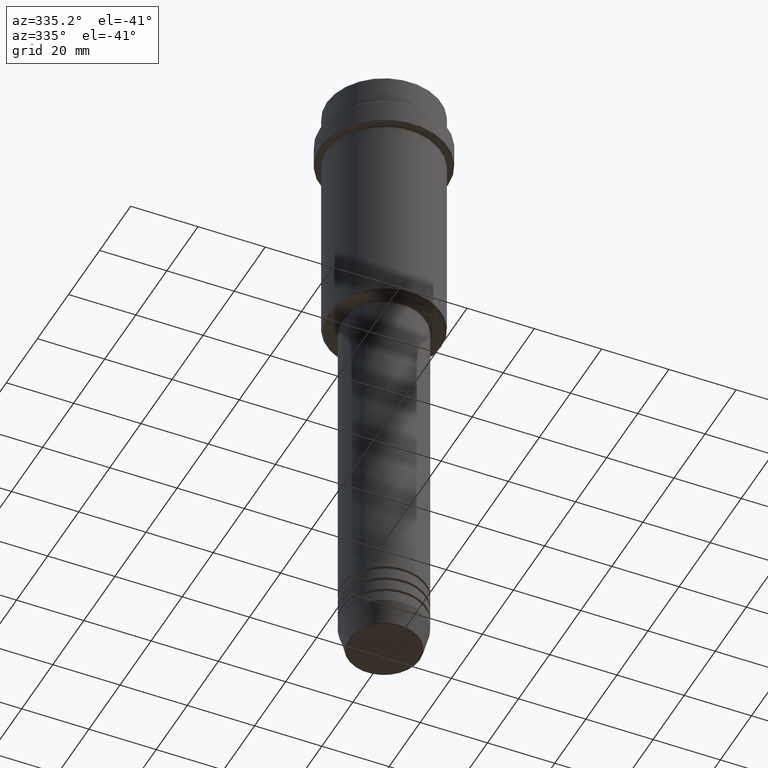
[diagram: clean part render]
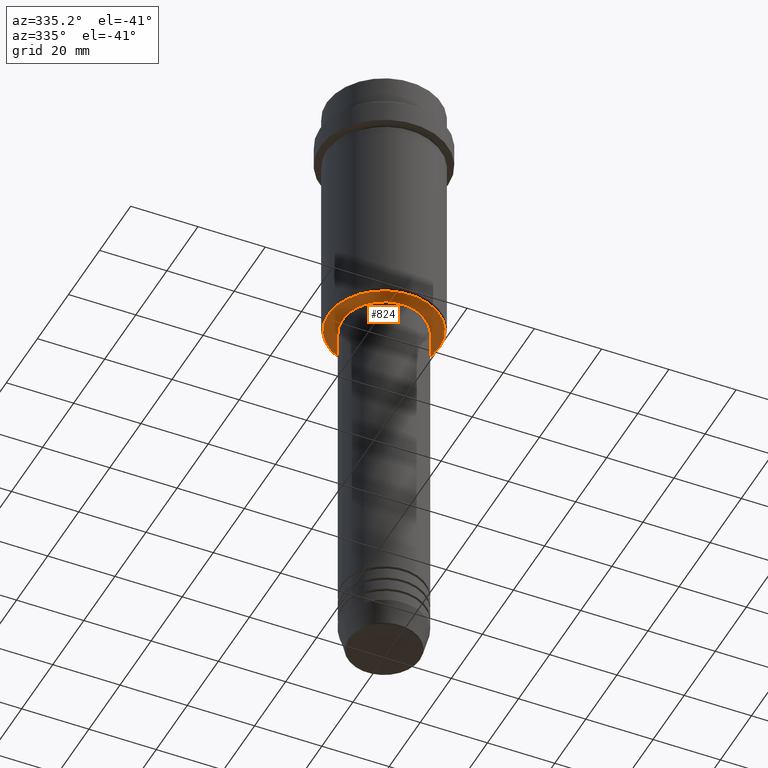
[diagram: same view with one face highlighted and labeled with its STEP entity id]
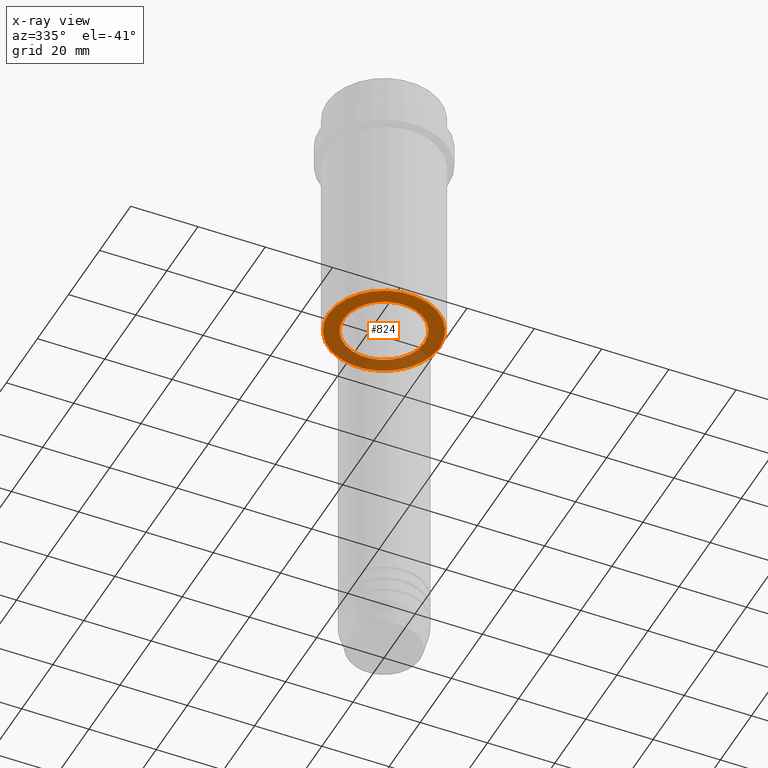
[diagram: x-ray of the same camera — body ghosted, the highlighted face saturated]
A machine part, auxiliary view. The second image highlights one B-rep face of the part: STEP entity #824.
The next image is the same camera in x-ray: the body ghosted, the highlighted face saturated — about 27% of this face is hidden behind the body in this view.
In plain terms, the highlighted planar face has unit normal (0, 0, -1).
Its self-contained STEP definition (entity closure, byte-faithful):
#19 = DIRECTION ( 'NONE',  ( -0.000000000000000000, -0.000000000000000000, 1.000000000000000000 ) ) ;
#32 = EDGE_LOOP ( 'NONE', ( #1375, #154 ) ) ;
#44 = VERTEX_POINT ( 'NONE', #1257 ) ;
#70 = EDGE_LOOP ( 'NONE', ( #547, #345 ) ) ;
#102 = FACE_OUTER_BOUND ( 'NONE', #32, .T. ) ;
#129 = EDGE_CURVE ( 'NONE', #44, #724, #645, .T. ) ;
#154 = ORIENTED_EDGE ( 'NONE', *, *, #439, .T. ) ;
#160 = VERTEX_POINT ( 'NONE', #528 ) ;
#188 = CARTESIAN_POINT ( 'NONE',  ( 0.000000000000000000, 0.000000000000000000, -76.00000000000000000 ) ) ;
#202 = CIRCLE ( 'NONE', #1096, 16.49999999999994671 ) ;
#249 = AXIS2_PLACEMENT_3D ( 'NONE', #772, #282, #1337 ) ;
#270 = CARTESIAN_POINT ( 'NONE',  ( 0.000000000000000000, 17.00000000000000000, -76.00000000000000000 ) ) ;
#282 = DIRECTION ( 'NONE',  ( -0.000000000000000000, -0.000000000000000000, 1.000000000000000000 ) ) ;
#345 = ORIENTED_EDGE ( 'NONE', *, *, #830, .T. ) ;
#367 = AXIS2_PLACEMENT_3D ( 'NONE', #748, #19, #978 ) ;
#439 = EDGE_CURVE ( 'NONE', #160, #548, #202, .T. ) ;
#527 = FACE_BOUND ( 'NONE', #70, .T. ) ;
#528 = CARTESIAN_POINT ( 'NONE',  ( -16.49999999999994671, 2.051283388571812943E-15, -76.00000000000000000 ) ) ;
#543 = CARTESIAN_POINT ( 'NONE',  ( -11.99999999999999289, 1.469576158976823158E-15, -76.00000000000000000 ) ) ;
#547 = ORIENTED_EDGE ( 'NONE', *, *, #129, .T. ) ;
#548 = VERTEX_POINT ( 'NONE', #1173 ) ;
#624 = CIRCLE ( 'NONE', #1008, 16.49999999999994671 ) ;
#645 = CIRCLE ( 'NONE', #367, 11.99999999999999289 ) ;
#701 = DIRECTION ( 'NONE',  ( 0.000000000000000000, 0.000000000000000000, -1.000000000000000000 ) ) ;
#724 = VERTEX_POINT ( 'NONE', #543 ) ;
#748 = CARTESIAN_POINT ( 'NONE',  ( 0.000000000000000000, 0.000000000000000000, -76.00000000000000000 ) ) ;
#772 = CARTESIAN_POINT ( 'NONE',  ( 0.000000000000000000, 0.000000000000000000, -76.00000000000000000 ) ) ;
#824 = ADVANCED_FACE ( 'NONE', ( #102, #527 ), #905, .T. ) ;
#830 = EDGE_CURVE ( 'NONE', #724, #44, #919, .T. ) ;
#905 = PLANE ( 'NONE',  #1363 ) ;
#913 = DIRECTION ( 'NONE',  ( 0.000000000000000000, 0.000000000000000000, -1.000000000000000000 ) ) ;
#919 = CIRCLE ( 'NONE', #249, 11.99999999999999289 ) ;
#944 = DIRECTION ( 'NONE',  ( 0.000000000000000000, 0.000000000000000000, -1.000000000000000000 ) ) ;
#978 = DIRECTION ( 'NONE',  ( 1.000000000000000000, 0.000000000000000000, 0.000000000000000000 ) ) ;
#996 = EDGE_CURVE ( 'NONE', #548, #160, #624, .T. ) ;
#1008 = AXIS2_PLACEMENT_3D ( 'NONE', #1057, #944, #1401 ) ;
#1017 = DIRECTION ( 'NONE',  ( -1.000000000000000000, 0.000000000000000000, 0.000000000000000000 ) ) ;
#1057 = CARTESIAN_POINT ( 'NONE',  ( 0.000000000000000000, 0.000000000000000000, -76.00000000000000000 ) ) ;
#1096 = AXIS2_PLACEMENT_3D ( 'NONE', #188, #701, #1017 ) ;
#1173 = CARTESIAN_POINT ( 'NONE',  ( 16.49999999999994671, 0.000000000000000000, -76.00000000000000000 ) ) ;
#1257 = CARTESIAN_POINT ( 'NONE',  ( 11.99999999999999289, 0.000000000000000000, -76.00000000000000000 ) ) ;
#1337 = DIRECTION ( 'NONE',  ( 1.000000000000000000, 0.000000000000000000, 0.000000000000000000 ) ) ;
#1359 = DIRECTION ( 'NONE',  ( -1.000000000000000000, 0.000000000000000000, -0.000000000000000000 ) ) ;
#1363 = AXIS2_PLACEMENT_3D ( 'NONE', #270, #913, #1359 ) ;
#1375 = ORIENTED_EDGE ( 'NONE', *, *, #996, .T. ) ;
#1401 = DIRECTION ( 'NONE',  ( -1.000000000000000000, 0.000000000000000000, 0.000000000000000000 ) ) ;